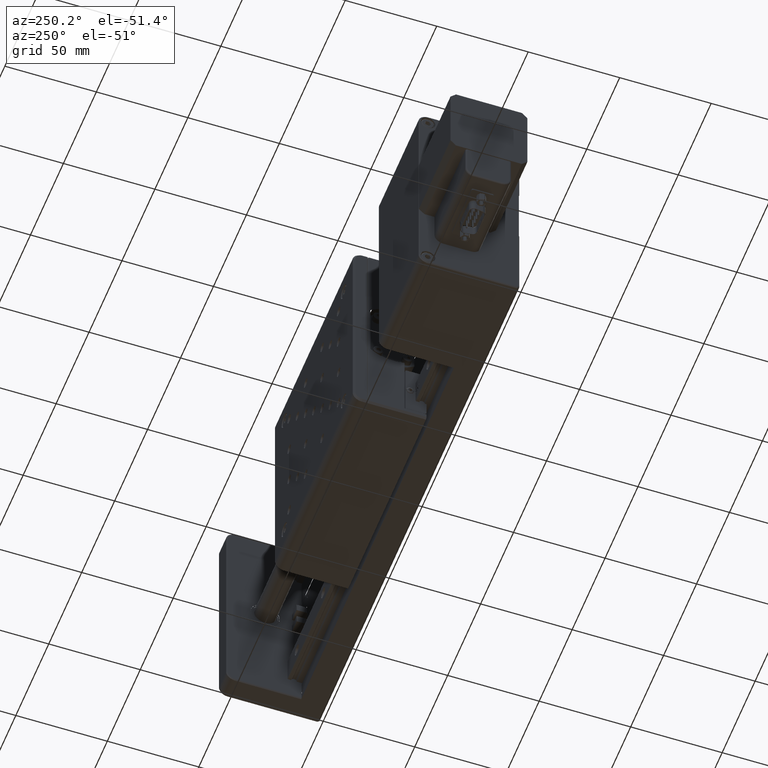
[diagram: clean part render]
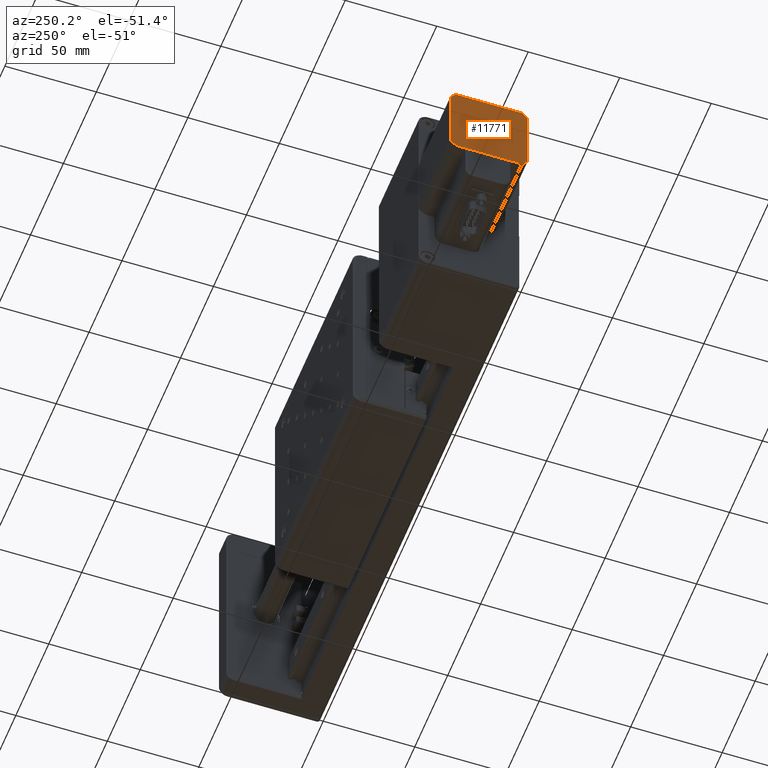
[diagram: same view with one face highlighted and labeled with its STEP entity id]
A machine part, auxiliary view. The second image highlights one B-rep face of the part: STEP entity #11771.
In plain terms, the highlighted planar face has unit normal (1, -0, 0).
Its self-contained STEP definition (entity closure, byte-faithful):
#1489 = DIRECTION ( 'NONE',  ( 0.0000000000000000000, 3.445092848397666500E-016, 1.000000000000000000 ) ) ;
#1593 = LINE ( 'NONE', #11528, #26732 ) ;
#2307 = LINE ( 'NONE', #16346, #35431 ) ;
#2503 = ORIENTED_EDGE ( 'NONE', *, *, #36960, .T. ) ;
#2771 = EDGE_CURVE ( 'NONE', #23541, #14518, #31056, .T. ) ;
#3779 = EDGE_CURVE ( 'NONE', #34114, #32298, #15094, .T. ) ;
#4453 = VERTEX_POINT ( 'NONE', #32202 ) ;
#5704 = CARTESIAN_POINT ( 'NONE',  ( 203.9875862552706300, 16.00000000000001400, 447.9433306992481200 ) ) ;
#6791 = AXIS2_PLACEMENT_3D ( 'NONE', #33845, #9929, #1489 ) ;
#7126 = EDGE_CURVE ( 'NONE', #11658, #30586, #2307, .T. ) ;
#7223 = PLANE ( 'NONE',  #6791 ) ;
#7444 = LINE ( 'NONE', #5704, #26512 ) ;
#8099 = VECTOR ( 'NONE', #30925, 1000.000000000000000 ) ;
#9929 = DIRECTION ( 'NONE',  ( 1.000000000000000000, -4.693749375163740200E-032, 1.617040240454761700E-047 ) ) ;
#10048 = CARTESIAN_POINT ( 'NONE',  ( 203.9875862552706600, 13.00000000000000500, 408.9433306992481800 ) ) ;
#10336 = EDGE_LOOP ( 'NONE', ( #21419, #22521, #2503, #25841, #37933, #22352, #13335, #12412 ) ) ;
#11213 = CARTESIAN_POINT ( 'NONE',  ( 203.9875862552706300, 16.00000000000001400, 447.9433306992481200 ) ) ;
#11384 = EDGE_CURVE ( 'NONE', #4453, #11658, #1593, .T. ) ;
#11528 = CARTESIAN_POINT ( 'NONE',  ( 203.9875862552706300, 55.00000000000006400, 447.9433306992481200 ) ) ;
#11658 = VERTEX_POINT ( 'NONE', #15442 ) ;
#11690 = CARTESIAN_POINT ( 'NONE',  ( 203.9875862552706300, 52.00000000000003600, 447.9433306992481200 ) ) ;
#11764 = DIRECTION ( 'NONE',  ( -0.0000000000000000000, 0.7071067811865507900, -0.7071067811865441300 ) ) ;
#11771 = ADVANCED_FACE ( 'NONE', ( #34354 ), #7223, .F. ) ;
#12412 = ORIENTED_EDGE ( 'NONE', *, *, #38106, .T. ) ;
#13335 = ORIENTED_EDGE ( 'NONE', *, *, #3779, .T. ) ;
#13532 = CARTESIAN_POINT ( 'NONE',  ( 203.9875862552706300, 52.00000000000004300, 405.9433306992481200 ) ) ;
#13712 = VECTOR ( 'NONE', #21643, 1000.000000000000000 ) ;
#14228 = LINE ( 'NONE', #35689, #19844 ) ;
#14518 = VERTEX_POINT ( 'NONE', #35932 ) ;
#15094 = LINE ( 'NONE', #33167, #13712 ) ;
#15246 = CARTESIAN_POINT ( 'NONE',  ( 203.9875862552706300, 15.99999999999999600, 405.9433306992481200 ) ) ;
#15442 = CARTESIAN_POINT ( 'NONE',  ( 203.9875862552706600, 55.00000000000005000, 408.9433306992481800 ) ) ;
#15852 = CARTESIAN_POINT ( 'NONE',  ( 203.9875862552706300, 13.00000000000001800, 447.9433306992481200 ) ) ;
#16346 = CARTESIAN_POINT ( 'NONE',  ( 203.9875862552706300, 52.00000000000004300, 405.9433306992481200 ) ) ;
#19844 = VECTOR ( 'NONE', #11764, 1000.000000000000000 ) ;
#19974 = LINE ( 'NONE', #10048, #8099 ) ;
#20529 = DIRECTION ( 'NONE',  ( 0.0000000000000000000, -3.445092848397667000E-016, -1.000000000000000000 ) ) ;
#21419 = ORIENTED_EDGE ( 'NONE', *, *, #11384, .T. ) ;
#21643 = DIRECTION ( 'NONE',  ( -4.693749375163775800E-032, 1.000000000000000000, -3.445092848397666500E-016 ) ) ;
#22236 = EDGE_CURVE ( 'NONE', #35960, #23541, #19974, .T. ) ;
#22352 = ORIENTED_EDGE ( 'NONE', *, *, #26788, .T. ) ;
#22521 = ORIENTED_EDGE ( 'NONE', *, *, #7126, .T. ) ;
#23541 = VERTEX_POINT ( 'NONE', #31173 ) ;
#25063 = CARTESIAN_POINT ( 'NONE',  ( 203.9875862552706300, 55.00000000000005000, 405.9433306992481200 ) ) ;
#25841 = ORIENTED_EDGE ( 'NONE', *, *, #22236, .T. ) ;
#26262 = DIRECTION ( 'NONE',  ( -7.395570986446982400E-032, 0.7071067811865469100, 0.7071067811865482400 ) ) ;
#26512 = VECTOR ( 'NONE', #26262, 1000.000000000000000 ) ;
#26732 = VECTOR ( 'NONE', #20529, 1000.000000000000000 ) ;
#26788 = EDGE_CURVE ( 'NONE', #14518, #34114, #7444, .T. ) ;
#28294 = VECTOR ( 'NONE', #34213, 1000.000000000000000 ) ;
#30586 = VERTEX_POINT ( 'NONE', #13532 ) ;
#30925 = DIRECTION ( 'NONE',  ( 0.0000000000000000000, -0.7071067811865480200, 0.7071067811865470200 ) ) ;
#31056 = LINE ( 'NONE', #15852, #36225 ) ;
#31173 = CARTESIAN_POINT ( 'NONE',  ( 203.9875862552706600, 13.00000000000000500, 408.9433306992481800 ) ) ;
#32202 = CARTESIAN_POINT ( 'NONE',  ( 203.9875862552706300, 55.00000000000006400, 444.9433306992481200 ) ) ;
#32298 = VERTEX_POINT ( 'NONE', #11690 ) ;
#33167 = CARTESIAN_POINT ( 'NONE',  ( 203.9875862552706300, 55.00000000000006400, 447.9433306992481200 ) ) ;
#33845 = CARTESIAN_POINT ( 'NONE',  ( 203.9875862552706600, 34.00000000000002800, 426.9433306992481200 ) ) ;
#34114 = VERTEX_POINT ( 'NONE', #11213 ) ;
#34213 = DIRECTION ( 'NONE',  ( 4.693749375163775800E-032, -1.000000000000000000, 3.445092848397666500E-016 ) ) ;
#34354 = FACE_OUTER_BOUND ( 'NONE', #10336, .T. ) ;
#34397 = DIRECTION ( 'NONE',  ( -0.0000000000000000000, -0.7071067811865464600, -0.7071067811865486800 ) ) ;
#34400 = LINE ( 'NONE', #25063, #28294 ) ;
#35431 = VECTOR ( 'NONE', #34397, 999.9999999999998900 ) ;
#35689 = CARTESIAN_POINT ( 'NONE',  ( 203.9875862552706300, 55.00000000000006400, 444.9433306992481200 ) ) ;
#35932 = CARTESIAN_POINT ( 'NONE',  ( 203.9875862552706300, 13.00000000000001800, 444.9433306992481200 ) ) ;
#35960 = VERTEX_POINT ( 'NONE', #15246 ) ;
#36225 = VECTOR ( 'NONE', #36779, 1000.000000000000000 ) ;
#36779 = DIRECTION ( 'NONE',  ( 0.0000000000000000000, 3.445092848397667000E-016, 1.000000000000000000 ) ) ;
#36960 = EDGE_CURVE ( 'NONE', #30586, #35960, #34400, .T. ) ;
#37933 = ORIENTED_EDGE ( 'NONE', *, *, #2771, .T. ) ;
#38106 = EDGE_CURVE ( 'NONE', #32298, #4453, #14228, .T. ) ;